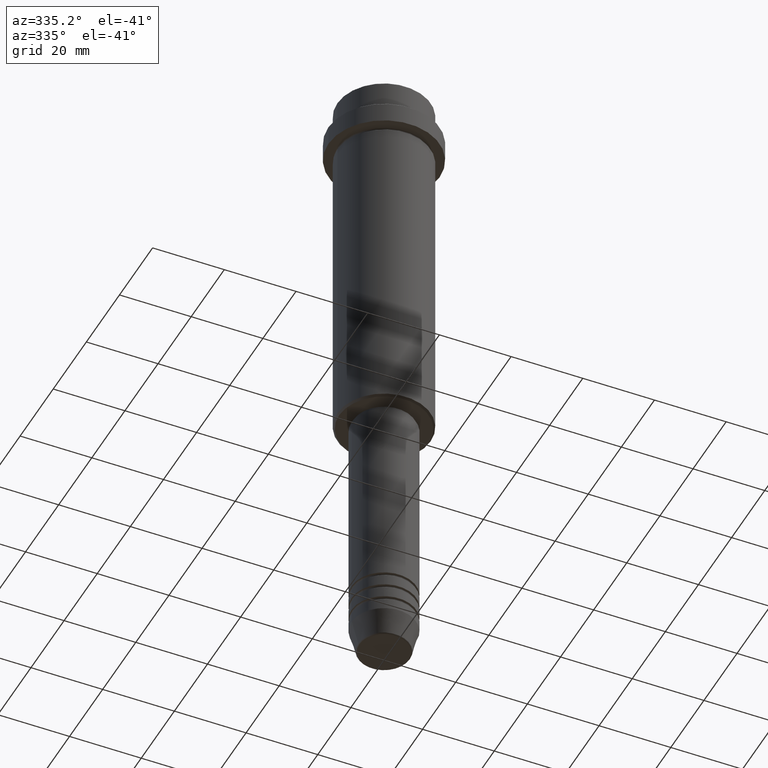
[diagram: clean part render]
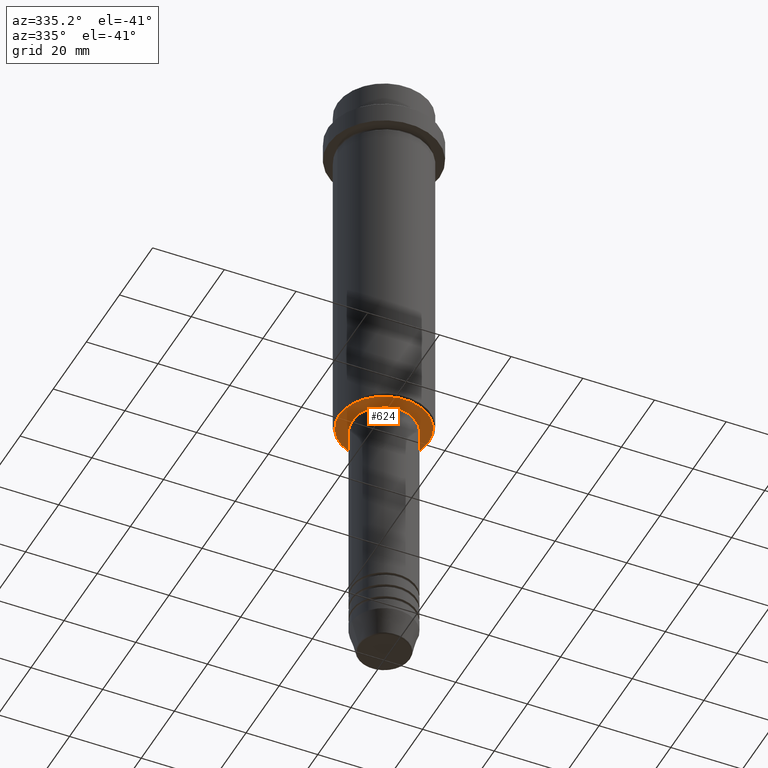
[diagram: same view with one face highlighted and labeled with its STEP entity id]
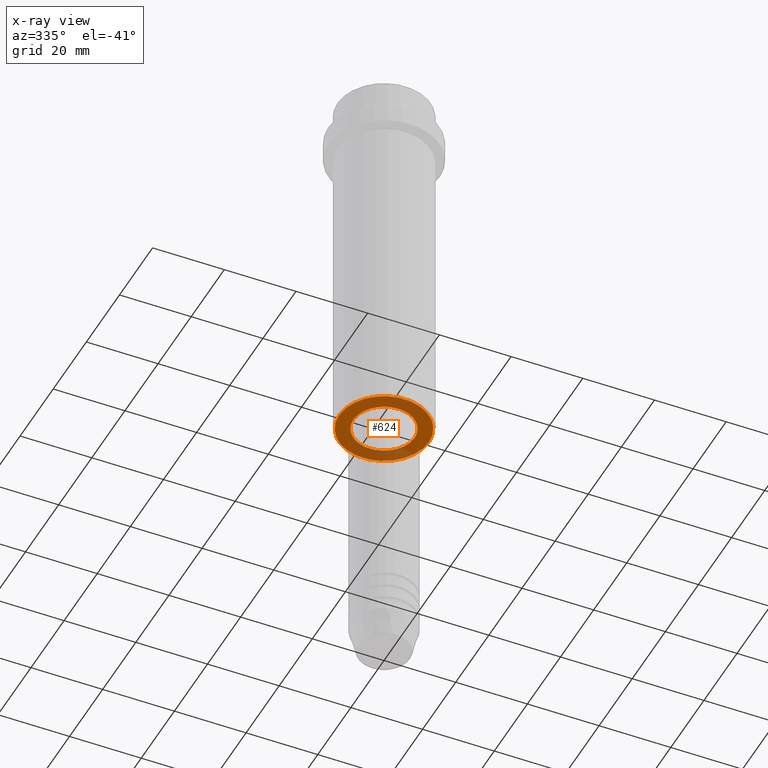
[diagram: x-ray of the same camera — body ghosted, the highlighted face saturated]
A machine part, auxiliary view. The second image highlights one B-rep face of the part: STEP entity #624.
The next image is the same camera in x-ray: the body ghosted, the highlighted face saturated — about 19% of this face is hidden behind the body in this view.
In plain terms, the highlighted planar face has unit normal (0, 0, -1).
Its self-contained STEP definition (entity closure, byte-faithful):
#22 = VERTEX_POINT ( 'NONE', #722 ) ;
#70 = CARTESIAN_POINT ( 'NONE',  ( 0.000000000000000000, 0.000000000000000000, -104.9999999999999858 ) ) ;
#80 = FACE_BOUND ( 'NONE', #636, .T. ) ;
#89 = FACE_OUTER_BOUND ( 'NONE', #669, .T. ) ;
#123 = ORIENTED_EDGE ( 'NONE', *, *, #1041, .T. ) ;
#125 = AXIS2_PLACEMENT_3D ( 'NONE', #871, #516, #322 ) ;
#157 = EDGE_CURVE ( 'NONE', #723, #257, #532, .T. ) ;
#200 = DIRECTION ( 'NONE',  ( 1.000000000000000000, 0.000000000000000000, 0.000000000000000000 ) ) ;
#204 = EDGE_CURVE ( 'NONE', #885, #22, #735, .T. ) ;
#236 = AXIS2_PLACEMENT_3D ( 'NONE', #70, #370, #505 ) ;
#242 = EDGE_CURVE ( 'NONE', #22, #885, #1277, .T. ) ;
#243 = CIRCLE ( 'NONE', #1060, 12.49999999999998401 ) ;
#257 = VERTEX_POINT ( 'NONE', #642 ) ;
#262 = CARTESIAN_POINT ( 'NONE',  ( 0.000000000000000000, 0.000000000000000000, -104.9999999999999858 ) ) ;
#322 = DIRECTION ( 'NONE',  ( -1.000000000000000000, 0.000000000000000000, -0.000000000000000000 ) ) ;
#370 = DIRECTION ( 'NONE',  ( 0.000000000000000000, 0.000000000000000000, -1.000000000000000000 ) ) ;
#480 = DIRECTION ( 'NONE',  ( -1.000000000000000000, 0.000000000000000000, 0.000000000000000000 ) ) ;
#505 = DIRECTION ( 'NONE',  ( -1.000000000000000000, 0.000000000000000000, 0.000000000000000000 ) ) ;
#516 = DIRECTION ( 'NONE',  ( 0.000000000000000000, 0.000000000000000000, -1.000000000000000000 ) ) ;
#532 = CIRCLE ( 'NONE', #236, 12.49999999999998401 ) ;
#624 = ADVANCED_FACE ( 'NONE', ( #89, #80 ), #773, .T. ) ;
#636 = EDGE_LOOP ( 'NONE', ( #896, #1350 ) ) ;
#642 = CARTESIAN_POINT ( 'NONE',  ( 12.49999999999998401, 0.000000000000000000, -104.9999999999999858 ) ) ;
#669 = EDGE_LOOP ( 'NONE', ( #123, #1126 ) ) ;
#708 = DIRECTION ( 'NONE',  ( 0.000000000000000000, 0.000000000000000000, -1.000000000000000000 ) ) ;
#722 = CARTESIAN_POINT ( 'NONE',  ( -8.499999999999994671, 1.040949779275249745E-15, -104.9999999999999858 ) ) ;
#723 = VERTEX_POINT ( 'NONE', #732 ) ;
#732 = CARTESIAN_POINT ( 'NONE',  ( -12.49999999999998401, 1.561424668912874125E-15, -104.9999999999999858 ) ) ;
#735 = CIRCLE ( 'NONE', #983, 8.499999999999994671 ) ;
#753 = CARTESIAN_POINT ( 'NONE',  ( 0.000000000000000000, 0.000000000000000000, -104.9999999999999858 ) ) ;
#773 = PLANE ( 'NONE',  #125 ) ;
#871 = CARTESIAN_POINT ( 'NONE',  ( 0.000000000000000000, 13.00000000000000000, -104.9999999999999858 ) ) ;
#885 = VERTEX_POINT ( 'NONE', #1305 ) ;
#896 = ORIENTED_EDGE ( 'NONE', *, *, #204, .T. ) ;
#983 = AXIS2_PLACEMENT_3D ( 'NONE', #1201, #1286, #200 ) ;
#1041 = EDGE_CURVE ( 'NONE', #257, #723, #243, .T. ) ;
#1060 = AXIS2_PLACEMENT_3D ( 'NONE', #262, #708, #480 ) ;
#1108 = DIRECTION ( 'NONE',  ( -0.000000000000000000, -0.000000000000000000, 1.000000000000000000 ) ) ;
#1126 = ORIENTED_EDGE ( 'NONE', *, *, #157, .T. ) ;
#1201 = CARTESIAN_POINT ( 'NONE',  ( 0.000000000000000000, 0.000000000000000000, -104.9999999999999858 ) ) ;
#1205 = AXIS2_PLACEMENT_3D ( 'NONE', #753, #1108, #1301 ) ;
#1277 = CIRCLE ( 'NONE', #1205, 8.499999999999994671 ) ;
#1286 = DIRECTION ( 'NONE',  ( -0.000000000000000000, -0.000000000000000000, 1.000000000000000000 ) ) ;
#1301 = DIRECTION ( 'NONE',  ( 1.000000000000000000, 0.000000000000000000, 0.000000000000000000 ) ) ;
#1305 = CARTESIAN_POINT ( 'NONE',  ( 8.499999999999994671, 0.000000000000000000, -104.9999999999999858 ) ) ;
#1350 = ORIENTED_EDGE ( 'NONE', *, *, #242, .T. ) ;